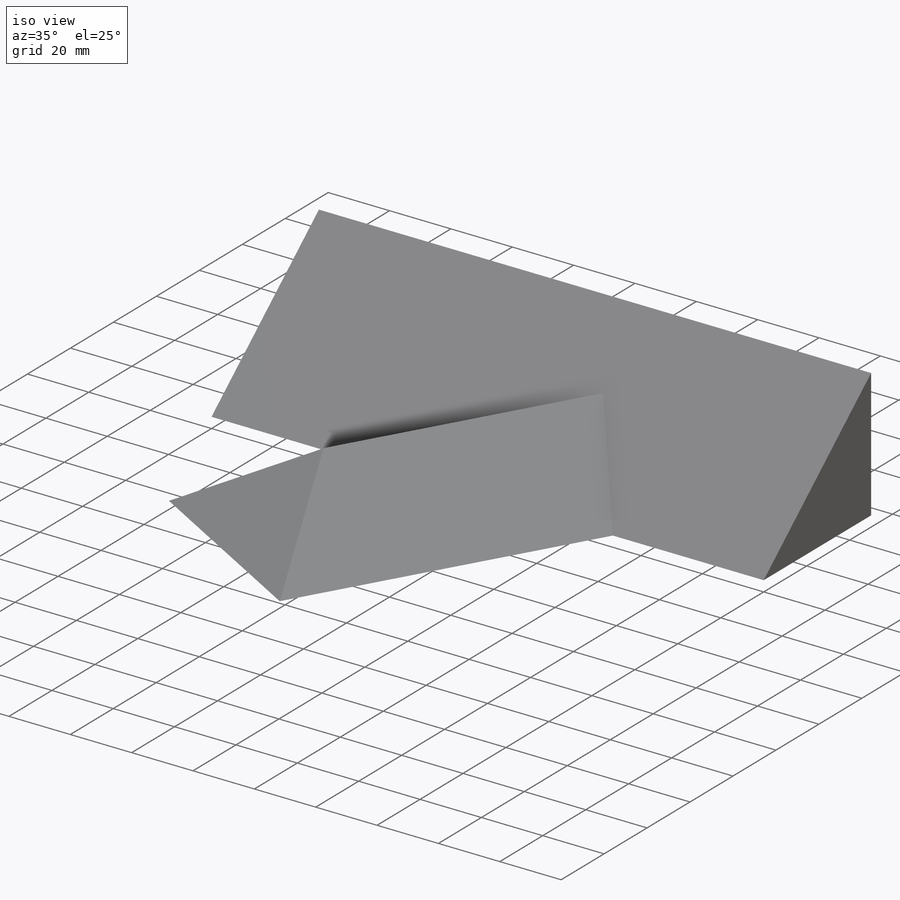
[diagram: iso view]
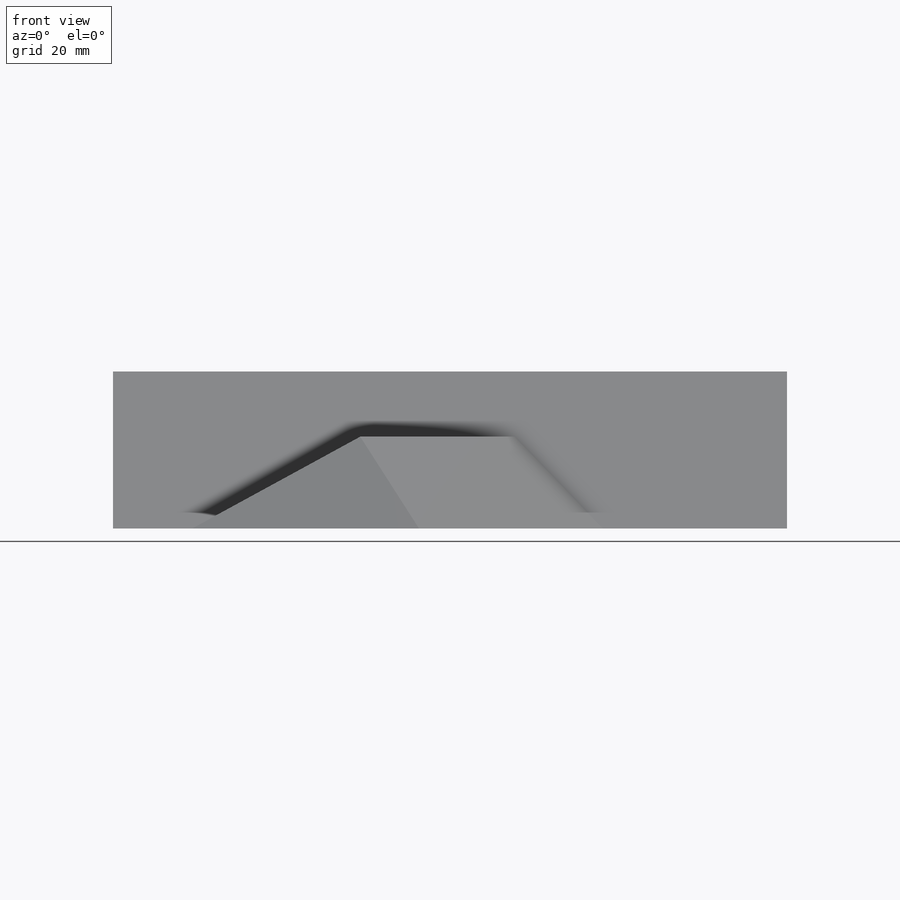
[diagram: front view]
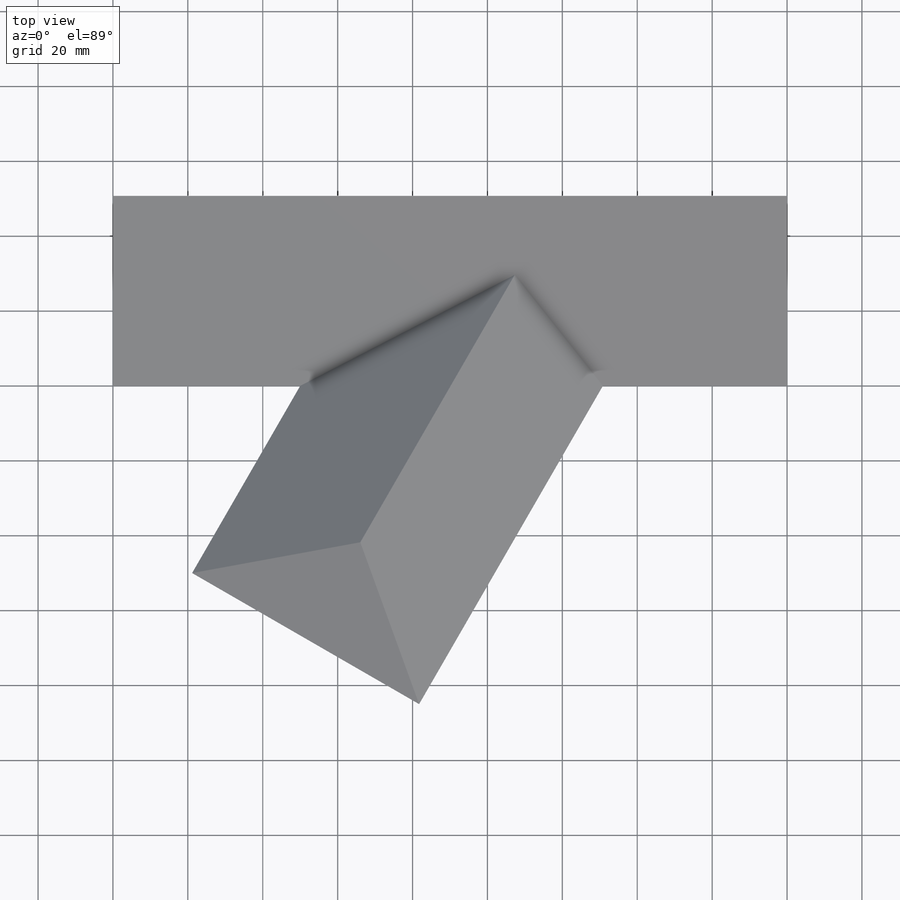
[diagram: top view]
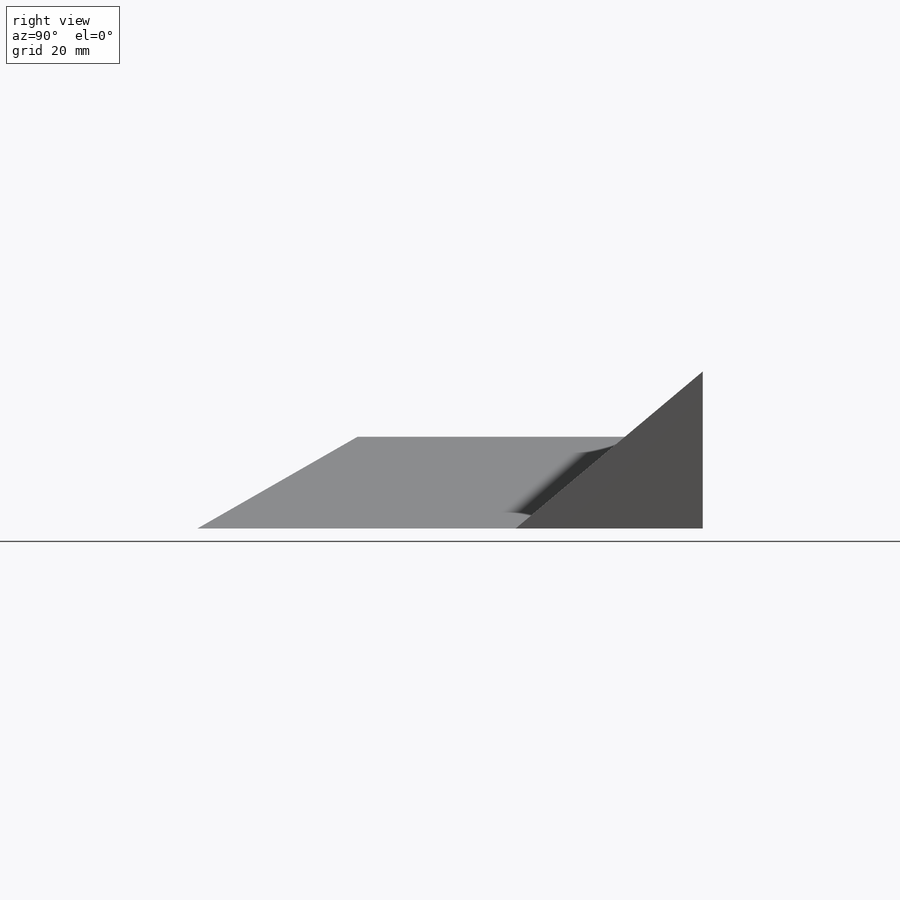
[diagram: right view]
SOLIDWORKS PART (.sldprt)
format: sldprt  version: not decoded by parser v0  size: 221,184 bytes
history: native  units: mm
features: sketch x5, plane x4, extrude x2, material x1, cut_extrude x1 (+14 scaffold rows collapsed)
feature tree (27):
  scaffold x14  (default folders/planes/origin — collapsed)
  material  "Material <not specified>"
  sketch  "Sketch1"  dims[c1.D1=50.0mm c1.D2=~58.36365mm c2.D2=40.0deg]
  extrude  "Extrude1"  Depth=180mm
  sketch  "Sketch2"  dims[c1.D1=50.0mm c1.D2=~58.221488mm c2.D2=60.0deg c2.D3=50.0mm c2.D4=70.0mm c3.D3=50.0mm]
  plane  "Plane3"
  sketch  "Sketch4"
  plane  "Plane4"
  sketch  "Sketch5"  dims[c1.D1=70.0mm c1.D2=~32.027751mm c2.D2=35.0deg c2.D3=~35.602425mm c3.D3=35.0deg]
  extrude  "Extrude2"  Depth=115mm
  plane  "Plane5"
  sketch  "Sketch6"  dims[c1.D1=~28.149923mm c2.D1=40.0deg]
  cut_extrude  "Cut-Extrude1"  Depth=70mm
  plane  "AD Dihedral Angle Plane"
decode coverage: 7 of 8 modeling features carry decoded parameters
note: ~ marks probable driven/reference dimensions
note: suppression state not decoded; provenance and decode notes live in map.json
